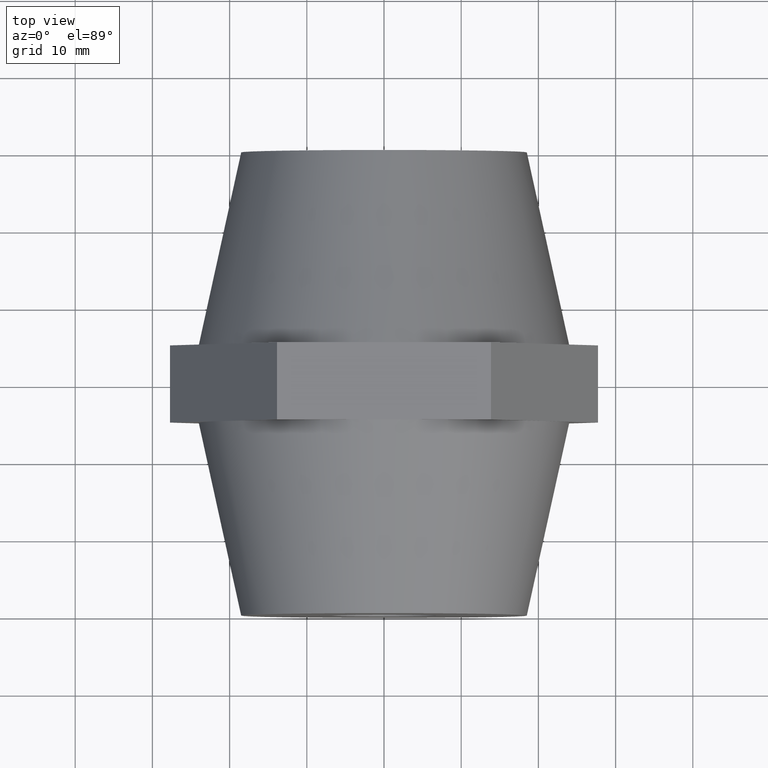
[diagram: clean part render]
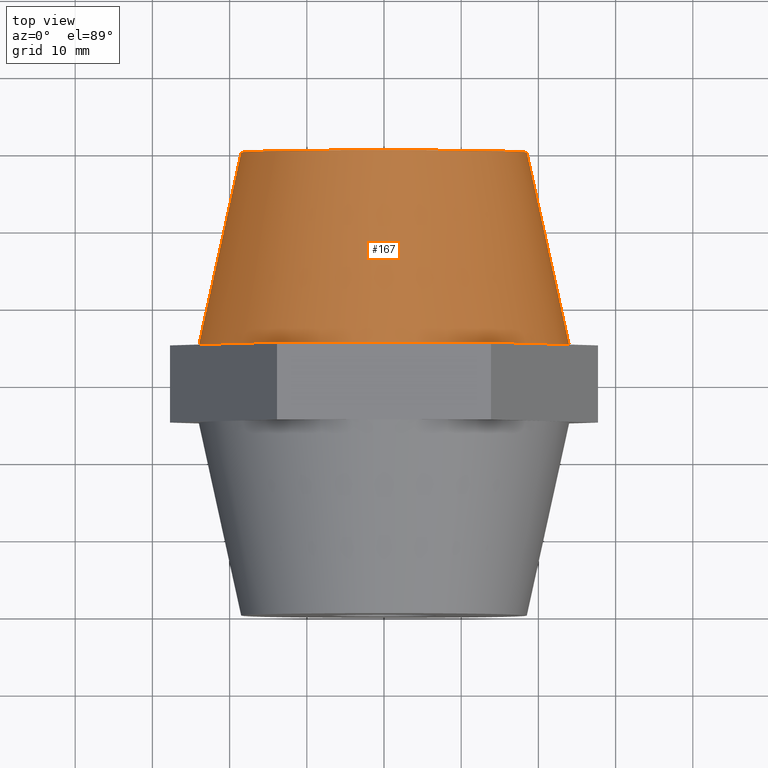
[diagram: same view with one face highlighted and labeled with its STEP entity id]
A machine part, top view. The second image highlights one B-rep face of the part: STEP entity #167.
In plain terms, the highlighted conical surface has half-angle 12.407 deg.
Its self-contained STEP definition (entity closure, byte-faithful):
#56 = LINE ( 'NONE', #1982, #285 ) ;
#135 = DIRECTION ( 'NONE',  ( 1.000000000000000000, 1.875376730785737500E-016, 0.0000000000000000000 ) ) ;
#137 = VERTEX_POINT ( 'NONE', #728 ) ;
#141 = DIRECTION ( 'NONE',  ( -1.000000000000000000, -1.084202172485504400E-016, 0.0000000000000000000 ) ) ;
#144 = CONICAL_SURFACE ( 'NONE', #652, 18.50000000000000000, 0.2165503049760894300 ) ;
#167 = ADVANCED_FACE ( 'NONE', ( #2807 ), #144, .T. ) ;
#234 = CARTESIAN_POINT ( 'NONE',  ( -3.004629197474319600E-015, 5.000000000000000000, 24.00000000000000000 ) ) ;
#285 = VECTOR ( 'NONE', #1145, 1000.000000000000000 ) ;
#289 = ORIENTED_EDGE ( 'NONE', *, *, #2444, .T. ) ;
#319 = EDGE_CURVE ( 'NONE', #1029, #137, #3832, .T. ) ;
#393 = AXIS2_PLACEMENT_3D ( 'NONE', #1274, #3712, #2801 ) ;
#427 = VERTEX_POINT ( 'NONE', #1959 ) ;
#575 = CARTESIAN_POINT ( 'NONE',  ( -24.00000000000000000, 4.999999999999996400, 2.939152317953648300E-015 ) ) ;
#631 = AXIS2_PLACEMENT_3D ( 'NONE', #1875, #2189, #2800 ) ;
#652 = AXIS2_PLACEMENT_3D ( 'NONE', #1577, #692, #135 ) ;
#692 = DIRECTION ( 'NONE',  ( 1.224646799147352000E-016, -1.000000000000000000, 0.0000000000000000000 ) ) ;
#728 = CARTESIAN_POINT ( 'NONE',  ( -20.78460969082655300, 5.000000000000000000, 12.00000000000000000 ) ) ;
#866 = CIRCLE ( 'NONE', #3835, 24.00000000000000000 ) ;
#966 = CARTESIAN_POINT ( 'NONE',  ( 18.50000000000000000, 30.00000000000000400, 0.0000000000000000000 ) ) ;
#1017 = CARTESIAN_POINT ( 'NONE',  ( 3.061616997868379900E-015, 5.000000000000000000, 0.0000000000000000000 ) ) ;
#1022 = AXIS2_PLACEMENT_3D ( 'NONE', #1017, #2522, #141 ) ;
#1029 = VERTEX_POINT ( 'NONE', #575 ) ;
#1133 = VECTOR ( 'NONE', #3036, 1000.000000000000100 ) ;
#1140 = EDGE_CURVE ( 'NONE', #3430, #1498, #1793, .T. ) ;
#1145 = DIRECTION ( 'NONE',  ( -0.2148617826751198800, -0.9766444667050899800, 2.631297944121799100E-017 ) ) ;
#1257 = EDGE_CURVE ( 'NONE', #427, #1870, #3184, .T. ) ;
#1274 = CARTESIAN_POINT ( 'NONE',  ( -2.774555597924435200E-031, 30.00000000000000000, 0.0000000000000000000 ) ) ;
#1421 = DIRECTION ( 'NONE',  ( -1.224646799147352000E-016, 1.000000000000000000, 0.0000000000000000000 ) ) ;
#1432 = DIRECTION ( 'NONE',  ( -1.224646799147352000E-016, 1.000000000000000000, 0.0000000000000000000 ) ) ;
#1462 = EDGE_LOOP ( 'NONE', ( #2798, #1524, #2178, #289, #3348, #3170, #3778 ) ) ;
#1498 = VERTEX_POINT ( 'NONE', #3827 ) ;
#1524 = ORIENTED_EDGE ( 'NONE', *, *, #3064, .T. ) ;
#1568 = CARTESIAN_POINT ( 'NONE',  ( -18.50000000000000000, 29.99999999999999600, 2.602374448188125800E-015 ) ) ;
#1577 = CARTESIAN_POINT ( 'NONE',  ( -2.774555597924435200E-031, 30.00000000000000000, 0.0000000000000000000 ) ) ;
#1741 = LINE ( 'NONE', #966, #1133 ) ;
#1793 = CIRCLE ( 'NONE', #393, 18.50000000000000000 ) ;
#1870 = VERTEX_POINT ( 'NONE', #2168 ) ;
#1875 = CARTESIAN_POINT ( 'NONE',  ( 3.061616997868379900E-015, 5.000000000000000000, 0.0000000000000000000 ) ) ;
#1959 = CARTESIAN_POINT ( 'NONE',  ( 20.78460969082655300, 5.000000000000000000, 12.00000000000000000 ) ) ;
#1982 = CARTESIAN_POINT ( 'NONE',  ( -18.50000000000000000, 29.99999999999999600, 2.265596578422603400E-015 ) ) ;
#2168 = CARTESIAN_POINT ( 'NONE',  ( 24.00000000000000400, 5.000000000000003600, 0.0000000000000000000 ) ) ;
#2178 = ORIENTED_EDGE ( 'NONE', *, *, #319, .T. ) ;
#2189 = DIRECTION ( 'NONE',  ( -1.224646799147352000E-016, 1.000000000000000000, 0.0000000000000000000 ) ) ;
#2366 = CARTESIAN_POINT ( 'NONE',  ( 3.061616997868379900E-015, 5.000000000000000000, 0.0000000000000000000 ) ) ;
#2444 = EDGE_CURVE ( 'NONE', #137, #2746, #866, .T. ) ;
#2522 = DIRECTION ( 'NONE',  ( -1.224646799147352000E-016, 1.000000000000000000, 0.0000000000000000000 ) ) ;
#2678 = DIRECTION ( 'NONE',  ( -1.000000000000000000, -1.084202172485504400E-016, 0.0000000000000000000 ) ) ;
#2746 = VERTEX_POINT ( 'NONE', #234 ) ;
#2798 = ORIENTED_EDGE ( 'NONE', *, *, #1140, .F. ) ;
#2800 = DIRECTION ( 'NONE',  ( -1.000000000000000000, -1.084202172485504400E-016, 0.0000000000000000000 ) ) ;
#2801 = DIRECTION ( 'NONE',  ( -1.000000000000000000, -1.875376730785737500E-016, 0.0000000000000000000 ) ) ;
#2807 = FACE_OUTER_BOUND ( 'NONE', #1462, .T. ) ;
#3036 = DIRECTION ( 'NONE',  ( 0.2148617826751201000, -0.9766444667050898600, 0.0000000000000000000 ) ) ;
#3064 = EDGE_CURVE ( 'NONE', #3430, #1029, #56, .T. ) ;
#3170 = ORIENTED_EDGE ( 'NONE', *, *, #1257, .T. ) ;
#3184 = CIRCLE ( 'NONE', #1022, 24.00000000000000000 ) ;
#3244 = CARTESIAN_POINT ( 'NONE',  ( 3.061616997868379900E-015, 5.000000000000000000, 0.0000000000000000000 ) ) ;
#3250 = CIRCLE ( 'NONE', #3825, 24.00000000000000000 ) ;
#3256 = DIRECTION ( 'NONE',  ( -1.000000000000000000, -1.084202172485504400E-016, 0.0000000000000000000 ) ) ;
#3348 = ORIENTED_EDGE ( 'NONE', *, *, #3772, .T. ) ;
#3430 = VERTEX_POINT ( 'NONE', #1568 ) ;
#3442 = EDGE_CURVE ( 'NONE', #1498, #1870, #1741, .T. ) ;
#3712 = DIRECTION ( 'NONE',  ( -1.224646799147352000E-016, 1.000000000000000000, 0.0000000000000000000 ) ) ;
#3772 = EDGE_CURVE ( 'NONE', #2746, #427, #3250, .T. ) ;
#3778 = ORIENTED_EDGE ( 'NONE', *, *, #3442, .F. ) ;
#3825 = AXIS2_PLACEMENT_3D ( 'NONE', #2366, #1432, #2678 ) ;
#3827 = CARTESIAN_POINT ( 'NONE',  ( 18.50000000000000000, 30.00000000000000400, 0.0000000000000000000 ) ) ;
#3832 = CIRCLE ( 'NONE', #631, 24.00000000000000000 ) ;
#3835 = AXIS2_PLACEMENT_3D ( 'NONE', #3244, #1421, #3256 ) ;